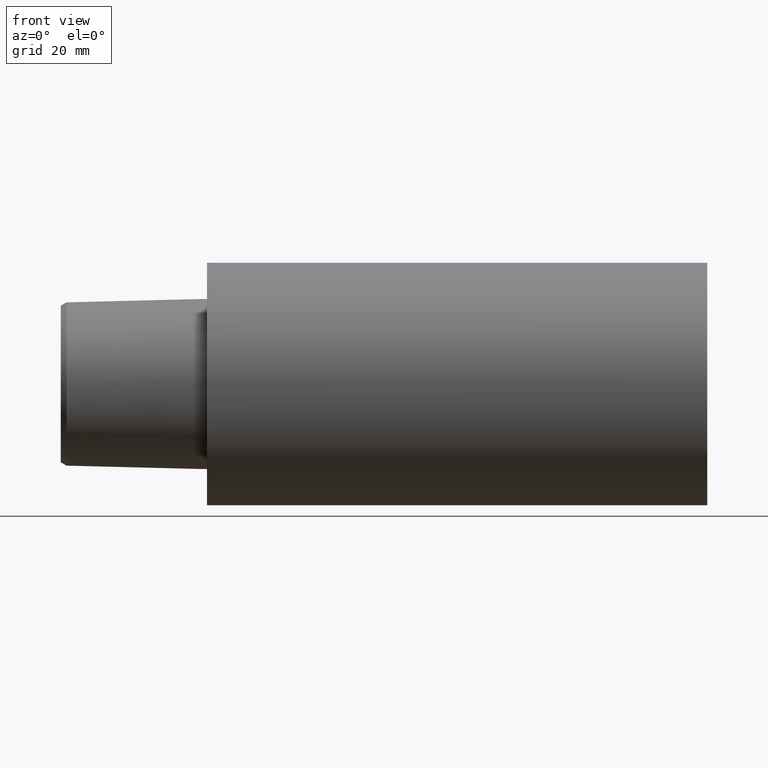
[diagram: clean part render]
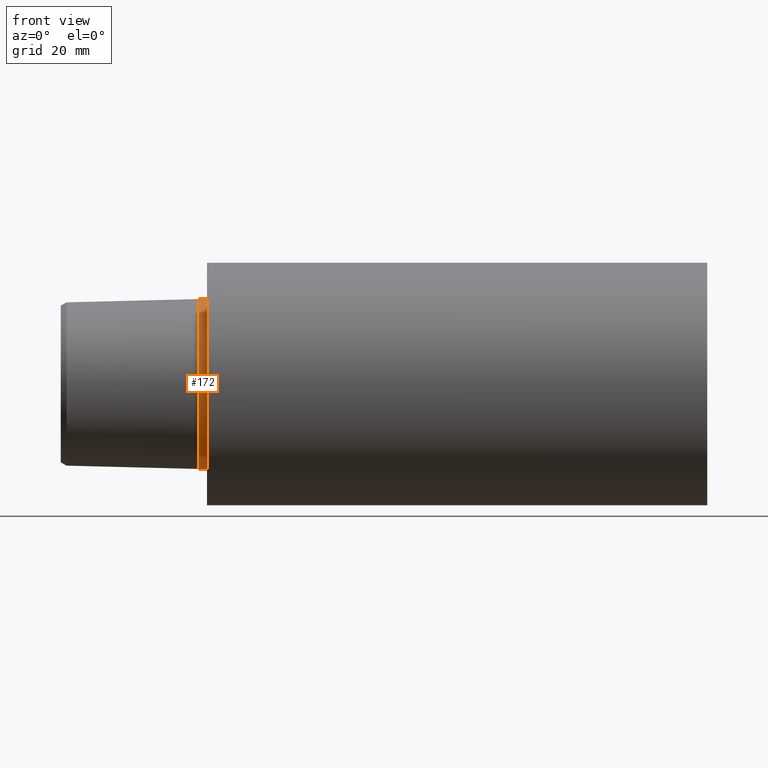
[diagram: same view with one face highlighted and labeled with its STEP entity id]
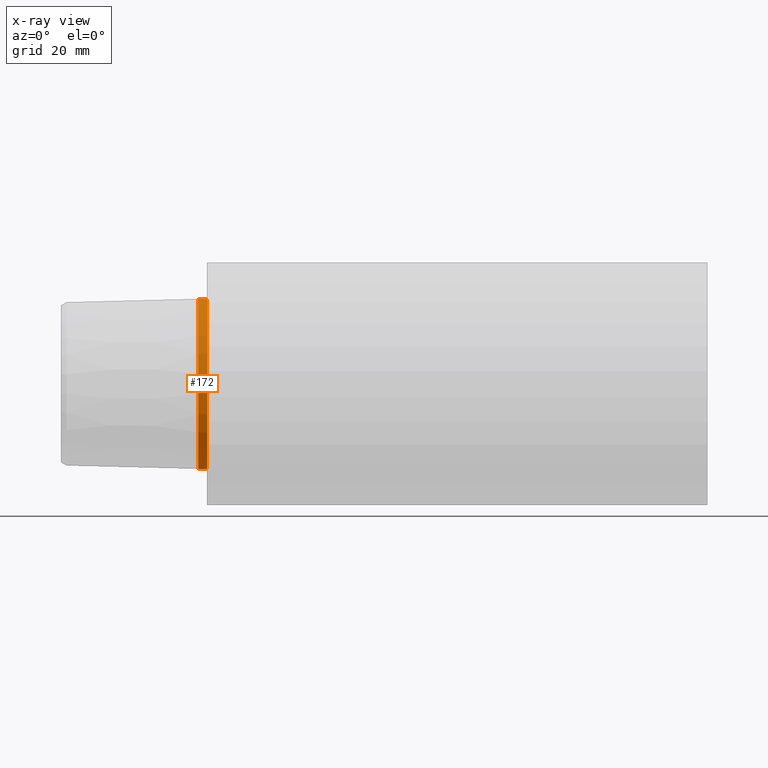
[diagram: x-ray of the same camera — body ghosted, the highlighted face saturated]
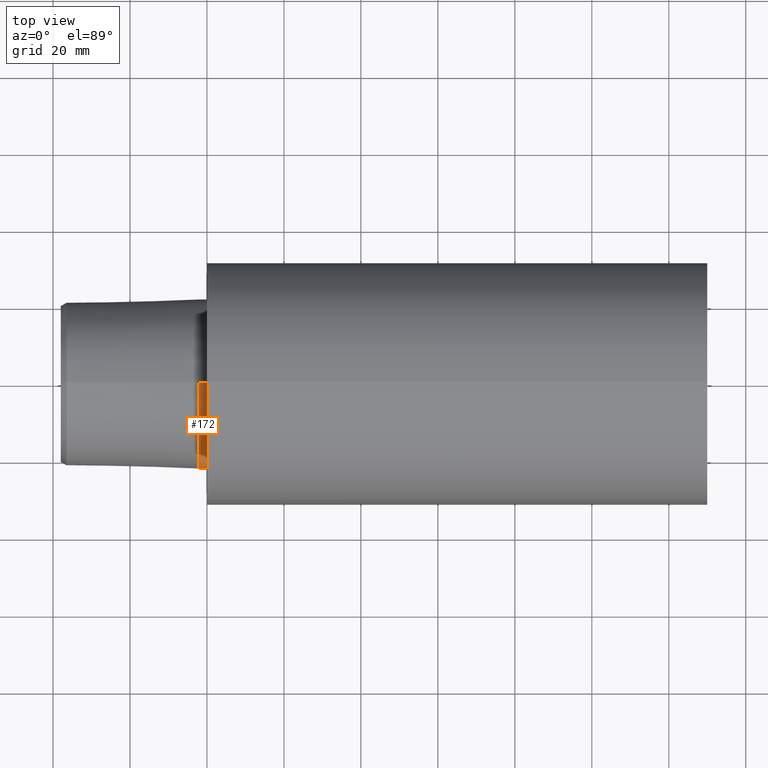
[diagram: same view with one face highlighted and labeled with its STEP entity id]
A machine part, front view. The second image highlights one B-rep face of the part: STEP entity #172.
The next image is the same camera in x-ray: the body ghosted, the highlighted face saturated — about 0% of this face is hidden behind the body in this view.
A second angle (top view) of the same face is appended — the face is thin or edge-on in the first view.
In plain terms, the highlighted cylindrical surface (partial cylindrical patch) has radius 22.0708 mm, axis along (-1, 0, 0).
Its self-contained STEP definition (entity closure, byte-faithful):
#6 = AXIS2_PLACEMENT_3D ( 'NONE', #106, #355, #108 ) ;
#16 = VERTEX_POINT ( 'NONE', #222 ) ;
#29 = DIRECTION ( 'NONE',  ( 0.000000000000000000, 0.000000000000000000, 1.000000000000000000 ) ) ;
#35 = FACE_OUTER_BOUND ( 'NONE', #184, .T. ) ;
#36 = AXIS2_PLACEMENT_3D ( 'NONE', #260, #228, #199 ) ;
#56 = LINE ( 'NONE', #353, #198 ) ;
#59 = EDGE_CURVE ( 'NONE', #247, #208, #56, .T. ) ;
#70 = EDGE_CURVE ( 'NONE', #208, #16, #218, .T. ) ;
#78 = CARTESIAN_POINT ( 'NONE',  ( -37.99999996124000035, 0.000000000000000000, 22.07078639032614120 ) ) ;
#85 = CARTESIAN_POINT ( 'NONE',  ( -2.199999999394708361, 0.000000000000000000, 0.000000000000000000 ) ) ;
#94 = EDGE_CURVE ( 'NONE', #110, #16, #140, .T. ) ;
#106 = CARTESIAN_POINT ( 'NONE',  ( -1.638711037459195739E-09, 0.000000000000000000, 0.000000000000000000 ) ) ;
#108 = DIRECTION ( 'NONE',  ( 0.000000000000000000, 0.000000000000000000, 1.000000000000000000 ) ) ;
#110 = VERTEX_POINT ( 'NONE', #250 ) ;
#119 = CYLINDRICAL_SURFACE ( 'NONE', #36, 22.07078639032614120 ) ;
#122 = EDGE_CURVE ( 'NONE', #247, #110, #354, .T. ) ;
#140 = LINE ( 'NONE', #78, #147 ) ;
#147 = VECTOR ( 'NONE', #251, 1000.000000000000000 ) ;
#163 = DIRECTION ( 'NONE',  ( -1.000000000000000000, 0.000000000000000000, 0.000000000000000000 ) ) ;
#166 = DIRECTION ( 'NONE',  ( -1.000000000000000000, 0.000000000000000000, 0.000000000000000000 ) ) ;
#172 = ADVANCED_FACE ( 'NONE', ( #35 ), #119, .T. ) ;
#181 = ORIENTED_EDGE ( 'NONE', *, *, #94, .T. ) ;
#184 = EDGE_LOOP ( 'NONE', ( #243, #190, #181, #297 ) ) ;
#190 = ORIENTED_EDGE ( 'NONE', *, *, #122, .T. ) ;
#198 = VECTOR ( 'NONE', #166, 1000.000000000000000 ) ;
#199 = DIRECTION ( 'NONE',  ( 0.000000000000000000, 0.000000000000000000, 1.000000000000000000 ) ) ;
#206 = CARTESIAN_POINT ( 'NONE',  ( -2.199999999394708361, 2.702891790757786195E-15, -22.07078639032614120 ) ) ;
#208 = VERTEX_POINT ( 'NONE', #206 ) ;
#218 = CIRCLE ( 'NONE', #264, 22.07078639032614120 ) ;
#222 = CARTESIAN_POINT ( 'NONE',  ( -2.199999999394708361, 0.000000000000000000, 22.07078639032614120 ) ) ;
#228 = DIRECTION ( 'NONE',  ( -1.000000000000000000, 0.000000000000000000, 0.000000000000000000 ) ) ;
#234 = CARTESIAN_POINT ( 'NONE',  ( -1.638711037459195739E-09, 2.702891790757786195E-15, -22.07078639032614120 ) ) ;
#243 = ORIENTED_EDGE ( 'NONE', *, *, #59, .F. ) ;
#247 = VERTEX_POINT ( 'NONE', #234 ) ;
#250 = CARTESIAN_POINT ( 'NONE',  ( -1.638711037459195739E-09, 0.000000000000000000, 22.07078639032614120 ) ) ;
#251 = DIRECTION ( 'NONE',  ( -1.000000000000000000, 0.000000000000000000, 0.000000000000000000 ) ) ;
#260 = CARTESIAN_POINT ( 'NONE',  ( -37.99999996124000035, 0.000000000000000000, 0.000000000000000000 ) ) ;
#264 = AXIS2_PLACEMENT_3D ( 'NONE', #85, #163, #29 ) ;
#297 = ORIENTED_EDGE ( 'NONE', *, *, #70, .F. ) ;
#353 = CARTESIAN_POINT ( 'NONE',  ( -37.99999996124000035, 2.702891790757786195E-15, -22.07078639032614120 ) ) ;
#354 = CIRCLE ( 'NONE', #6, 22.07078639032614120 ) ;
#355 = DIRECTION ( 'NONE',  ( -1.000000000000000000, 0.000000000000000000, 0.000000000000000000 ) ) ;